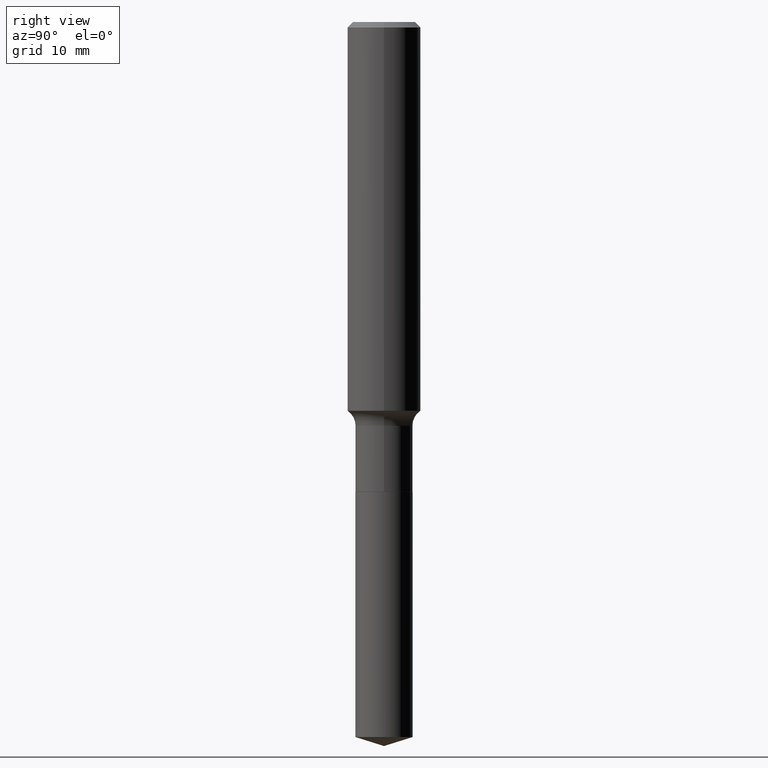
[diagram: clean part render]
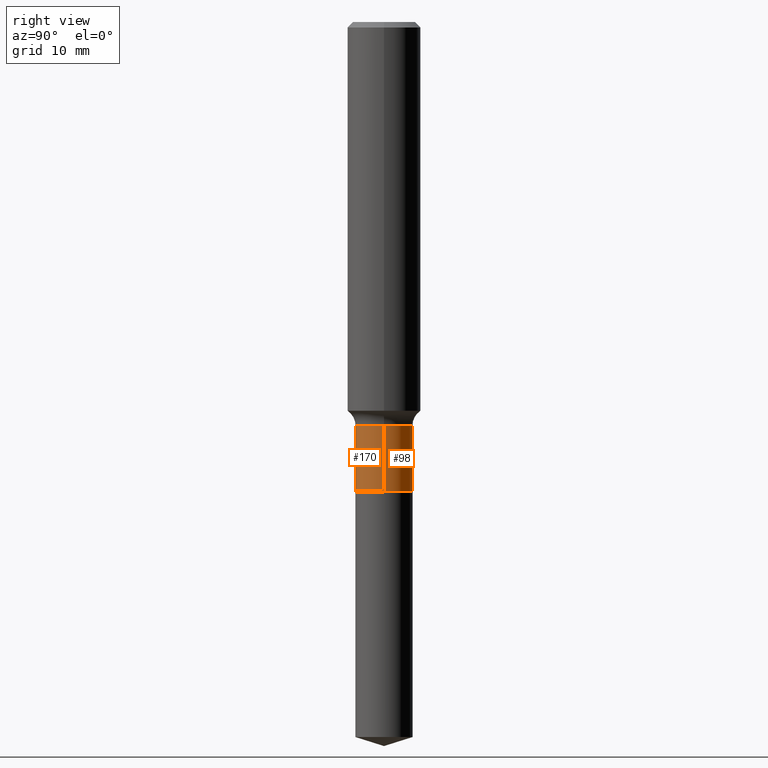
[diagram: same view with one multi-face feature highlighted, each face labeled with its STEP entity id]
A machine part, right view. The highlighted faces form ONE feature: a constant-radius fillet chain: 2 tangent blend faces with common blend radius 3.1255 mm. The faces share edges in the B-rep.
Their STEP definitions:
[1] entity #170 (Cylinder):
#6 = LINE ( 'NONE', #317, #272 ) ;
#15 = EDGE_CURVE ( 'NONE', #373, #303, #200, .T. ) ;
#17 = EDGE_CURVE ( 'NONE', #357, #298, #6, .T. ) ;
#26 = CARTESIAN_POINT ( 'NONE',  ( -0.1230500000000000482, -5.675521581249995942E-15, -2.017199999999999882 ) ) ;
#27 = CIRCLE ( 'NONE', #138, 0.1230500000000000344 ) ;
#29 = ORIENTED_EDGE ( 'NONE', *, *, #433, .F. ) ;
#35 = CYLINDRICAL_SURFACE ( 'NONE', #436, 0.1230500000000000205 ) ;
#42 = ORIENTED_EDGE ( 'NONE', *, *, #15, .F. ) ;
#63 = DIRECTION ( 'NONE',  ( -2.445468806185136597E-29, 3.491481338843145583E-15, 1.000000000000000000 ) ) ;
#89 = DIRECTION ( 'NONE',  ( -2.445468806185136877E-29, 3.491481338843145188E-15, 1.000000000000000000 ) ) ;
#93 = ORIENTED_EDGE ( 'NONE', *, *, #372, .T. ) ;
#96 = CARTESIAN_POINT ( 'NONE',  ( -0.1230500000000000066, -5.675521581249995942E-15, -1.734700000000000131 ) ) ;
#133 = FACE_OUTER_BOUND ( 'NONE', #385, .T. ) ;
#138 = AXIS2_PLACEMENT_3D ( 'NONE', #140, #63, #377 ) ;
#140 = CARTESIAN_POINT ( 'NONE',  ( 4.932999675836657605E-29, -7.043016156714394043E-15, -2.017199999999999882 ) ) ;
#170 = ADVANCED_FACE ( 'NONE', ( #133 ), #35, .T. ) ;
#191 = DIRECTION ( 'NONE',  ( 1.000000000000000000, -6.982962677686263555E-15, 0.000000000000000000 ) ) ;
#193 = DIRECTION ( 'NONE',  ( 1.000000000000000000, -6.982962677686266711E-15, 4.876176775795935793E-29 ) ) ;
#200 = LINE ( 'NONE', #491, #370 ) ;
#228 = CARTESIAN_POINT ( 'NONE',  ( 0.000000000000000000, 0.000000000000000000, 0.000000000000000000 ) ) ;
#232 = ORIENTED_EDGE ( 'NONE', *, *, #17, .T. ) ;
#251 = CIRCLE ( 'NONE', #294, 0.1230500000000000066 ) ;
#272 = VECTOR ( 'NONE', #282, 39.37007874015748143 ) ;
#282 = DIRECTION ( 'NONE',  ( -2.445468806185136877E-29, 3.491481338843145188E-15, 1.000000000000000000 ) ) ;
#294 = AXIS2_PLACEMENT_3D ( 'NONE', #350, #318, #191 ) ;
#298 = VERTEX_POINT ( 'NONE', #323 ) ;
#303 = VERTEX_POINT ( 'NONE', #96 ) ;
#317 = CARTESIAN_POINT ( 'NONE',  ( 0.1230500000000000205, -8.592535574892952166E-16, 6.000135522616899800E-30 ) ) ;
#318 = DIRECTION ( 'NONE',  ( -2.445468806185136597E-29, 3.491481338843145583E-15, 1.000000000000000000 ) ) ;
#323 = CARTESIAN_POINT ( 'NONE',  ( 0.1230500000000000066, -6.915926235980499906E-15, -1.734700000000000131 ) ) ;
#350 = CARTESIAN_POINT ( 'NONE',  ( 4.242154738089357054E-29, -6.056672678491205084E-15, -1.734700000000000131 ) ) ;
#357 = VERTEX_POINT ( 'NONE', #474 ) ;
#370 = VECTOR ( 'NONE', #89, 39.37007874015748143 ) ;
#372 = EDGE_CURVE ( 'NONE', #373, #357, #27, .T. ) ;
#373 = VERTEX_POINT ( 'NONE', #26 ) ;
#377 = DIRECTION ( 'NONE',  ( 1.000000000000000000, -6.982962677686261977E-15, 0.000000000000000000 ) ) ;
#385 = EDGE_LOOP ( 'NONE', ( #42, #93, #232, #29 ) ) ;
#403 = DIRECTION ( 'NONE',  ( -2.445468806185136597E-29, 3.491481338843145583E-15, 1.000000000000000000 ) ) ;
#433 = EDGE_CURVE ( 'NONE', #303, #298, #251, .T. ) ;
#436 = AXIS2_PLACEMENT_3D ( 'NONE', #228, #403, #193 ) ;
#474 = CARTESIAN_POINT ( 'NONE',  ( 0.1230500000000000344, -7.902269714203688077E-15, -2.017199999999999882 ) ) ;
#491 = CARTESIAN_POINT ( 'NONE',  ( -0.1230500000000000205, 8.743228363528034242E-16, -6.052749628558661976E-30 ) ) ;
[2] entity #98 (Cylinder):
#6 = LINE ( 'NONE', #317, #272 ) ;
#15 = EDGE_CURVE ( 'NONE', #373, #303, #200, .T. ) ;
#17 = EDGE_CURVE ( 'NONE', #357, #298, #6, .T. ) ;
#19 = AXIS2_PLACEMENT_3D ( 'NONE', #115, #356, #325 ) ;
#26 = CARTESIAN_POINT ( 'NONE',  ( -0.1230500000000000482, -5.675521581249995942E-15, -2.017199999999999882 ) ) ;
#50 = DIRECTION ( 'NONE',  ( -2.445468806185136597E-29, 3.491481338843145583E-15, 1.000000000000000000 ) ) ;
#64 = DIRECTION ( 'NONE',  ( 1.000000000000000000, -6.982962677686266711E-15, 4.876176775795935793E-29 ) ) ;
#89 = DIRECTION ( 'NONE',  ( -2.445468806185136877E-29, 3.491481338843145188E-15, 1.000000000000000000 ) ) ;
#96 = CARTESIAN_POINT ( 'NONE',  ( -0.1230500000000000066, -5.675521581249995942E-15, -1.734700000000000131 ) ) ;
#98 = ADVANCED_FACE ( 'NONE', ( #412 ), #375, .T. ) ;
#104 = ORIENTED_EDGE ( 'NONE', *, *, #15, .T. ) ;
#115 = CARTESIAN_POINT ( 'NONE',  ( 4.932999675836657605E-29, -7.043016156714394043E-15, -2.017199999999999882 ) ) ;
#132 = DIRECTION ( 'NONE',  ( 1.000000000000000000, -6.982962677686263555E-15, 0.000000000000000000 ) ) ;
#166 = EDGE_LOOP ( 'NONE', ( #240, #104, #274, #223 ) ) ;
#180 = CIRCLE ( 'NONE', #19, 0.1230500000000000344 ) ;
#181 = CARTESIAN_POINT ( 'NONE',  ( 0.000000000000000000, 0.000000000000000000, 0.000000000000000000 ) ) ;
#197 = CARTESIAN_POINT ( 'NONE',  ( 4.242154738089357054E-29, -6.056672678491205084E-15, -1.734700000000000131 ) ) ;
#200 = LINE ( 'NONE', #491, #370 ) ;
#209 = CIRCLE ( 'NONE', #408, 0.1230500000000000066 ) ;
#223 = ORIENTED_EDGE ( 'NONE', *, *, #17, .F. ) ;
#240 = ORIENTED_EDGE ( 'NONE', *, *, #242, .T. ) ;
#242 = EDGE_CURVE ( 'NONE', #357, #373, #180, .T. ) ;
#255 = AXIS2_PLACEMENT_3D ( 'NONE', #181, #381, #64 ) ;
#272 = VECTOR ( 'NONE', #282, 39.37007874015748143 ) ;
#274 = ORIENTED_EDGE ( 'NONE', *, *, #281, .F. ) ;
#281 = EDGE_CURVE ( 'NONE', #298, #303, #209, .T. ) ;
#282 = DIRECTION ( 'NONE',  ( -2.445468806185136877E-29, 3.491481338843145188E-15, 1.000000000000000000 ) ) ;
#298 = VERTEX_POINT ( 'NONE', #323 ) ;
#303 = VERTEX_POINT ( 'NONE', #96 ) ;
#317 = CARTESIAN_POINT ( 'NONE',  ( 0.1230500000000000205, -8.592535574892952166E-16, 6.000135522616899800E-30 ) ) ;
#323 = CARTESIAN_POINT ( 'NONE',  ( 0.1230500000000000066, -6.915926235980499906E-15, -1.734700000000000131 ) ) ;
#325 = DIRECTION ( 'NONE',  ( 1.000000000000000000, -6.982962677686261977E-15, 0.000000000000000000 ) ) ;
#356 = DIRECTION ( 'NONE',  ( -2.445468806185136597E-29, 3.491481338843145583E-15, 1.000000000000000000 ) ) ;
#357 = VERTEX_POINT ( 'NONE', #474 ) ;
#370 = VECTOR ( 'NONE', #89, 39.37007874015748143 ) ;
#373 = VERTEX_POINT ( 'NONE', #26 ) ;
#375 = CYLINDRICAL_SURFACE ( 'NONE', #255, 0.1230500000000000205 ) ;
#381 = DIRECTION ( 'NONE',  ( -2.445468806185136597E-29, 3.491481338843145583E-15, 1.000000000000000000 ) ) ;
#408 = AXIS2_PLACEMENT_3D ( 'NONE', #197, #50, #132 ) ;
#412 = FACE_OUTER_BOUND ( 'NONE', #166, .T. ) ;
#474 = CARTESIAN_POINT ( 'NONE',  ( 0.1230500000000000344, -7.902269714203688077E-15, -2.017199999999999882 ) ) ;
#491 = CARTESIAN_POINT ( 'NONE',  ( -0.1230500000000000205, 8.743228363528034242E-16, -6.052749628558661976E-30 ) ) ;